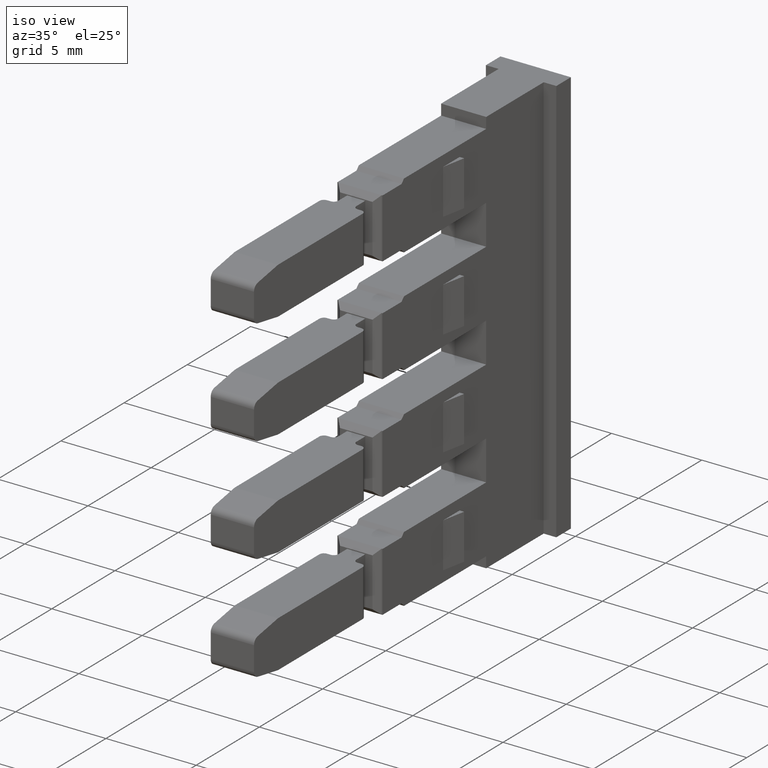
[diagram: clean part render]
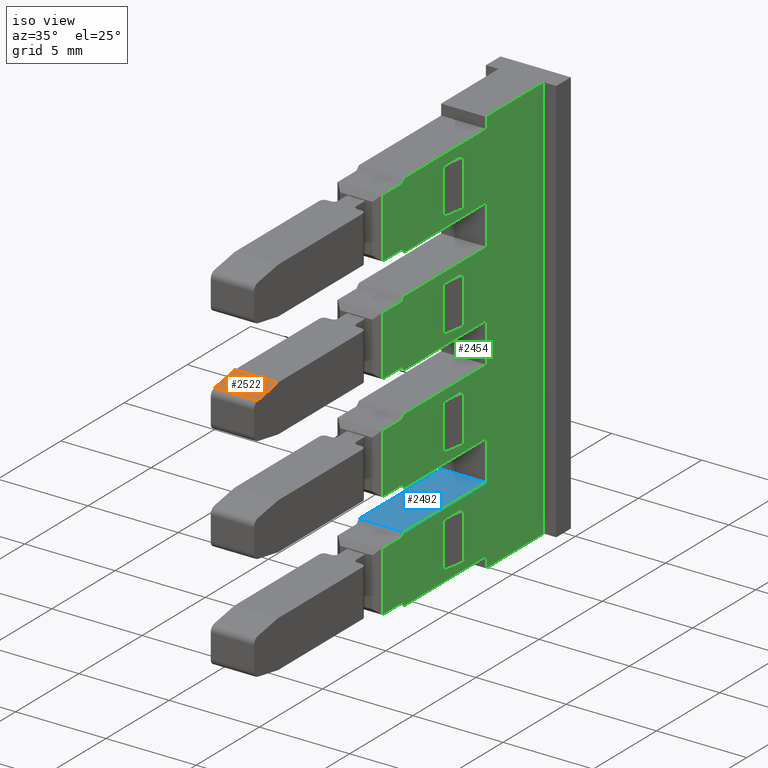
[diagram: same view with three faces highlighted in distinct colors, each labeled with its STEP entity id]
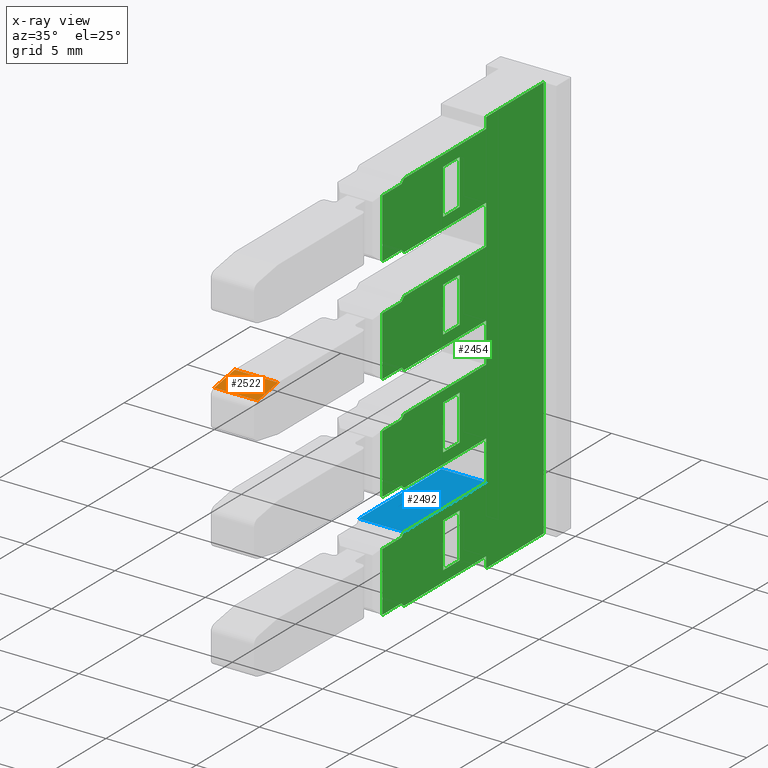
[diagram: x-ray of the same camera — body ghosted, the three highlighted faces saturated]
A machine part, iso view with three faces highlighted in distinct colors.
The next image is the same camera in x-ray (body ghosted, the three faces saturated) — at least one of them is partly hidden behind the body in this view.
Their STEP definitions:

[orange] entity #2522 — the highlighted planar face has unit normal (0, 0.1736, -0.9848).
#245 = EDGE_LOOP ( 'NONE', ( #5169, #5184, #5117, #5109 ) ) ;
#1151 = VECTOR ( 'NONE', #3966, 999.9999999999998900 ) ;
#1153 = VECTOR ( 'NONE', #3933, 1000.000000000000000 ) ;
#1208 = VECTOR ( 'NONE', #3957, 999.9999999999998900 ) ;
#1600 = AXIS2_PLACEMENT_3D ( 'NONE', #3100, #3117, #3111 ) ;
#1884 = VECTOR ( 'NONE', #3829, 1000.000000000000000 ) ;
#2117 = EDGE_CURVE ( 'NONE', #5468, #5411, #3826, .T. ) ;
#2152 = EDGE_CURVE ( 'NONE', #5345, #5416, #3938, .T. ) ;
#2167 = EDGE_CURVE ( 'NONE', #5411, #5345, #3944, .T. ) ;
#2168 = EDGE_CURVE ( 'NONE', #5416, #5468, #3964, .T. ) ;
#2522 = ADVANCED_FACE ( 'NONE', ( #3099 ), #3118, .F. ) ;
#3099 = FACE_OUTER_BOUND ( 'NONE', #245, .T. ) ;
#3100 = CARTESIAN_POINT ( 'NONE',  ( 1447.990005405424200, 987.5951899124289600, -84.10000000026970200 ) ) ;
#3111 = DIRECTION ( 'NONE',  ( 0.0000000000000000000, 0.9848077530122177900, 0.1736481776668759300 ) ) ;
#3117 = DIRECTION ( 'NONE',  ( 1.588044770917189400E-015, 0.1736481776668759300, -0.9848077530122177900 ) ) ;
#3118 = PLANE ( 'NONE',  #1600 ) ;
#3470 = CARTESIAN_POINT ( 'NONE',  ( 1456.818237421122100, 987.5951899124344200, -84.10000000014346700 ) ) ;
#3566 = CARTESIAN_POINT ( 'NONE',  ( 1459.217905001598200, 987.5951899123730300, -84.10000000015426700 ) ) ;
#3578 = CARTESIAN_POINT ( 'NONE',  ( 1456.818237421122100, 985.9839026753555800, -84.38411341383684300 ) ) ;
#3629 = CARTESIAN_POINT ( 'NONE',  ( 1459.217905001598200, 985.9839026753555800, -84.38411341383684300 ) ) ;
#3804 = CARTESIAN_POINT ( 'NONE',  ( 1447.990005405424200, 985.9839026753555800, -84.38411341383685700 ) ) ;
#3826 = LINE ( 'NONE', #3804, #1884 ) ;
#3829 = DIRECTION ( 'NONE',  ( -1.000000000000000000, 2.757610805231813000E-016, -1.563918802529759200E-015 ) ) ;
#3923 = CARTESIAN_POINT ( 'NONE',  ( 1458.020071211366000, 987.5951899124289600, -84.09999999998783000 ) ) ;
#3933 = DIRECTION ( 'NONE',  ( 1.000000000000000000, 0.0000000000000000000, 1.715124499442840100E-015 ) ) ;
#3938 = LINE ( 'NONE', #3923, #1153 ) ;
#3941 = CARTESIAN_POINT ( 'NONE',  ( 1459.217905001598200, 987.5951899124289600, -84.10000000026970200 ) ) ;
#3944 = LINE ( 'NONE', #3975, #1208 ) ;
#3957 = DIRECTION ( 'NONE',  ( 0.0000000000000000000, 0.9848077530122177900, 0.1736481776668759300 ) ) ;
#3964 = LINE ( 'NONE', #3941, #1151 ) ;
#3966 = DIRECTION ( 'NONE',  ( -0.0000000000000000000, -0.9848077530122177900, -0.1736481776668759300 ) ) ;
#3975 = CARTESIAN_POINT ( 'NONE',  ( 1456.818237421122100, 987.5951899124289600, -84.10000000026970200 ) ) ;
#5109 = ORIENTED_EDGE ( 'NONE', *, *, #2117, .F. ) ;
#5117 = ORIENTED_EDGE ( 'NONE', *, *, #2167, .F. ) ;
#5169 = ORIENTED_EDGE ( 'NONE', *, *, #2168, .F. ) ;
#5184 = ORIENTED_EDGE ( 'NONE', *, *, #2152, .F. ) ;
#5345 = VERTEX_POINT ( 'NONE', #3470 ) ;
#5411 = VERTEX_POINT ( 'NONE', #3578 ) ;
#5416 = VERTEX_POINT ( 'NONE', #3566 ) ;
#5468 = VERTEX_POINT ( 'NONE', #3629 ) ;

[blue] entity #2492 — the highlighted planar face has unit normal (0, -0, 1).
#354 = EDGE_LOOP ( 'NONE', ( #1141, #1135, #1106, #1131 ) ) ;
#933 = CARTESIAN_POINT ( 'NONE',  ( 1459.267071211366600, 1007.642679537504000, -95.34999999998878200 ) ) ;
#955 = LINE ( 'NONE', #933, #1841 ) ;
#961 = DIRECTION ( 'NONE',  ( 1.280238727656624100E-014, 1.000000000000000000, -0.0000000000000000000 ) ) ;
#1106 = ORIENTED_EDGE ( 'NONE', *, *, #2310, .T. ) ;
#1131 = ORIENTED_EDGE ( 'NONE', *, *, #2076, .T. ) ;
#1135 = ORIENTED_EDGE ( 'NONE', *, *, #2137, .T. ) ;
#1141 = ORIENTED_EDGE ( 'NONE', *, *, #2161, .T. ) ;
#1161 = VECTOR ( 'NONE', #3956, 1000.000000000000000 ) ;
#1211 = VECTOR ( 'NONE', #3858, 1000.000000000000000 ) ;
#1378 = VECTOR ( 'NONE', #4404, 1000.000000000000000 ) ;
#1536 = AXIS2_PLACEMENT_3D ( 'NONE', #2918, #2951, #2961 ) ;
#1841 = VECTOR ( 'NONE', #961, 1000.000000000000000 ) ;
#2076 = EDGE_CURVE ( 'NONE', #5376, #5337, #955, .T. ) ;
#2137 = EDGE_CURVE ( 'NONE', #5338, #5380, #3817, .T. ) ;
#2161 = EDGE_CURVE ( 'NONE', #5337, #5338, #3981, .T. ) ;
#2310 = EDGE_CURVE ( 'NONE', #5380, #5376, #4381, .T. ) ;
#2492 = ADVANCED_FACE ( 'NONE', ( #2932 ), #2934, .T. ) ;
#2918 = CARTESIAN_POINT ( 'NONE',  ( 1516.460390188475000, 997.4946795375043400, -95.34999999998913700 ) ) ;
#2932 = FACE_OUTER_BOUND ( 'NONE', #354, .T. ) ;
#2934 = PLANE ( 'NONE',  #1536 ) ;
#2951 = DIRECTION ( 'NONE',  ( 1.715124499442925100E-015, -2.195768806939460200E-029, 1.000000000000000000 ) ) ;
#2961 = DIRECTION ( 'NONE',  ( 1.000000000000000000, 0.0000000000000000000, -1.715124499442925100E-015 ) ) ;
#3491 = CARTESIAN_POINT ( 'NONE',  ( 1456.769071211365800, 1003.994679537506300, -95.34999999998902400 ) ) ;
#3497 = CARTESIAN_POINT ( 'NONE',  ( 1459.267071211366300, 1003.994679537506300, -95.34999999998896700 ) ) ;
#3530 = CARTESIAN_POINT ( 'NONE',  ( 1456.769071211365800, 997.4946795375042300, -95.34999999998872500 ) ) ;
#3537 = CARTESIAN_POINT ( 'NONE',  ( 1459.267071211366300, 997.4946795375042300, -95.34999999998866800 ) ) ;
#3817 = LINE ( 'NONE', #3851, #1211 ) ;
#3851 = CARTESIAN_POINT ( 'NONE',  ( 1456.769071211365800, 997.4946795375043400, -95.34999999998903800 ) ) ;
#3858 = DIRECTION ( 'NONE',  ( -3.766016875894430600E-044, -1.000000000000000000, -2.195768806939460200E-029 ) ) ;
#3956 = DIRECTION ( 'NONE',  ( -1.000000000000000000, 6.401193638283200000E-015, 3.370899700909298000E-028 ) ) ;
#3981 = LINE ( 'NONE', #3983, #1161 ) ;
#3983 = CARTESIAN_POINT ( 'NONE',  ( 1456.318071211366000, 1003.994679537506000, -95.34999999998902400 ) ) ;
#4377 = CARTESIAN_POINT ( 'NONE',  ( 1516.460390188475000, 997.4946795375045700, -95.34999999998913700 ) ) ;
#4381 = LINE ( 'NONE', #4377, #1378 ) ;
#4404 = DIRECTION ( 'NONE',  ( 1.000000000000000000, 0.0000000000000000000, -1.715124499442925100E-015 ) ) ;
#5337 = VERTEX_POINT ( 'NONE', #3497 ) ;
#5338 = VERTEX_POINT ( 'NONE', #3491 ) ;
#5376 = VERTEX_POINT ( 'NONE', #3537 ) ;
#5380 = VERTEX_POINT ( 'NONE', #3530 ) ;

[green] entity #2454 — the highlighted planar face has unit normal (-1, 0, 0).
#209 = EDGE_LOOP ( 'NONE', ( #4875, #4847, #4856, #4898 ) ) ;
#226 = EDGE_LOOP ( 'NONE', ( #5691, #5705, #5706, #5731, #5729, #5740, #5736, #4873, #4953, #4851, #4906, #4938, #4889, #4886, #4887, #4866, #4865, #4936, #4897, #4860, #4853, #4846, #4896, #4872, #4954, #4878, #4918, #4960, #4859, #4937, #4862, #4881, #4877, #4882, #4956, #4852 ) ) ;
#250 = EDGE_LOOP ( 'NONE', ( #4933, #4874, #4939, #4890 ) ) ;
#285 = EDGE_LOOP ( 'NONE', ( #4909, #4926, #4854, #4855 ) ) ;
#299 = EDGE_LOOP ( 'NONE', ( #4884, #4861, #4857, #4867 ) ) ;
#476 = LINE ( 'NONE', #512, #1669 ) ;
#486 = CARTESIAN_POINT ( 'NONE',  ( 1459.267071211366600, 1003.994679537510600, -77.04999999999319000 ) ) ;
#495 = LINE ( 'NONE', #498, #1667 ) ;
#498 = CARTESIAN_POINT ( 'NONE',  ( 1459.267071211366600, 1007.642679537518000, -77.04999999999317600 ) ) ;
#501 = LINE ( 'NONE', #486, #1706 ) ;
#506 = DIRECTION ( 'NONE',  ( 1.071457127791093600E-025, 9.317217804677289600E-014, -1.000000000000000000 ) ) ;
#512 = CARTESIAN_POINT ( 'NONE',  ( 1459.267071211366600, 1003.994679537520300, -100.1158559843420100 ) ) ;
#514 = DIRECTION ( 'NONE',  ( 8.167936110773030400E-029, -1.045690813403665900E-042, 1.000000000000000000 ) ) ;
#521 = LINE ( 'NONE', #546, #1678 ) ;
#530 = DIRECTION ( 'NONE',  ( -0.0000000000000000000, 0.7071067811865999800, 0.7071067811864950600 ) ) ;
#536 = DIRECTION ( 'NONE',  ( 1.280238727656624100E-014, 1.000000000000000000, -0.0000000000000000000 ) ) ;
#546 = CARTESIAN_POINT ( 'NONE',  ( 1459.267071211366600, 1007.642679537518000, -81.34999999999109800 ) ) ;
#550 = LINE ( 'NONE', #551, #1701 ) ;
#551 = CARTESIAN_POINT ( 'NONE',  ( 1459.267071211366300, 997.4946795375185500, -77.64999999999024300 ) ) ;
#555 = DIRECTION ( 'NONE',  ( -1.280238727656624100E-014, -1.000000000000000000, 0.0000000000000000000 ) ) ;
#564 = LINE ( 'NONE', #572, #1703 ) ;
#572 = CARTESIAN_POINT ( 'NONE',  ( 1459.267071211366600, 1007.642679537518000, -77.64999999999290000 ) ) ;
#580 = DIRECTION ( 'NONE',  ( 1.280238727656624100E-014, 1.000000000000000000, -0.0000000000000000000 ) ) ;
#612 = CARTESIAN_POINT ( 'NONE',  ( 1459.267071211366300, 995.7946795375190700, -81.14999999999172100 ) ) ;
#617 = DIRECTION ( 'NONE',  ( -0.0000000000000000000, 1.000000000000000000, -3.397305977084603400E-014 ) ) ;
#624 = CARTESIAN_POINT ( 'NONE',  ( 1459.267071211366300, 1001.106402704010000, -77.84999999999018900 ) ) ;
#627 = LINE ( 'NONE', #624, #1751 ) ;
#630 = LINE ( 'NONE', #612, #1740 ) ;
#631 = LINE ( 'NONE', #644, #1700 ) ;
#641 = DIRECTION ( 'NONE',  ( -0.0000000000000000000, 1.000000000000000000, -6.042920786565250600E-015 ) ) ;
#644 = CARTESIAN_POINT ( 'NONE',  ( 1459.267071211366600, 1007.642679537518000, -87.24999999998702500 ) ) ;
#647 = DIRECTION ( 'NONE',  ( -1.280238727656624100E-014, -1.000000000000000000, 0.0000000000000000000 ) ) ;
#653 = CARTESIAN_POINT ( 'NONE',  ( 1459.267071211366300, 1001.892679537514000, -80.75000000009424600 ) ) ;
#655 = LINE ( 'NONE', #685, #1761 ) ;
#657 = DIRECTION ( 'NONE',  ( -0.0000000000000000000, -1.000000000000000000, -0.0000000000000000000 ) ) ;
#660 = LINE ( 'NONE', #653, #1780 ) ;
#669 = CARTESIAN_POINT ( 'NONE',  ( 1459.267071211365600, 1000.592679537507700, -92.55000000009425800 ) ) ;
#671 = DIRECTION ( 'NONE',  ( 0.0000000000000000000, 0.0000000000000000000, 1.000000000000000000 ) ) ;
#685 = CARTESIAN_POINT ( 'NONE',  ( 1459.267071211365600, 1000.592679537514600, -86.65000000009425200 ) ) ;
#686 = LINE ( 'NONE', #688, #1757 ) ;
#687 = DIRECTION ( 'NONE',  ( 0.0000000000000000000, 0.0000000000000000000, 1.000000000000000000 ) ) ;
#688 = CARTESIAN_POINT ( 'NONE',  ( 1459.267071211365600, 1001.892679537500700, -98.45000000009424900 ) ) ;
#694 = LINE ( 'NONE', #669, #1758 ) ;
#698 = DIRECTION ( 'NONE',  ( 0.0000000000000000000, 0.0000000000000000000, 1.000000000000000000 ) ) ;
#706 = DIRECTION ( 'NONE',  ( 1.280238727656624100E-014, 1.000000000000000000, -0.0000000000000000000 ) ) ;
#707 = CARTESIAN_POINT ( 'NONE',  ( 1459.267071211366300, 1000.592679537514000, -78.25000000009424600 ) ) ;
#711 = LINE ( 'NONE', #731, #1767 ) ;
#712 = DIRECTION ( 'NONE',  ( -0.0000000000000000000, 0.7071067811865240400, -0.7071067811865710000 ) ) ;
#717 = LINE ( 'NONE', #761, #1726 ) ;
#718 = CARTESIAN_POINT ( 'NONE',  ( 1459.267071211366600, 1007.642679537518000, -83.54999999998877100 ) ) ;
#719 = LINE ( 'NONE', #784, #1771 ) ;
#722 = LINE ( 'NONE', #707, #1777 ) ;
#731 = CARTESIAN_POINT ( 'NONE',  ( 1459.267071211366300, 997.1446795375180700, -80.99999999999180000 ) ) ;
#732 = LINE ( 'NONE', #718, #1746 ) ;
#735 = DIRECTION ( 'NONE',  ( -0.0000000000000000000, -1.000000000000000000, -0.0000000000000000000 ) ) ;
#736 = CARTESIAN_POINT ( 'NONE',  ( 1459.267071211366300, 995.7926795375192300, -100.1158559843420100 ) ) ;
#738 = DIRECTION ( 'NONE',  ( 8.167936110773030400E-029, -1.045690813403665900E-042, 1.000000000000000000 ) ) ;
#739 = LINE ( 'NONE', #736, #1731 ) ;
#749 = DIRECTION ( 'NONE',  ( -8.167936110773030400E-029, 1.045690813403665900E-042, -1.000000000000000000 ) ) ;
#752 = CARTESIAN_POINT ( 'NONE',  ( 1459.267071211366300, 995.7946795375190700, -83.74999999998840400 ) ) ;
#755 = LINE ( 'NONE', #752, #1770 ) ;
#758 = LINE ( 'NONE', #787, #1728 ) ;
#761 = CARTESIAN_POINT ( 'NONE',  ( 1459.267071211366600, 1008.542679537515100, -100.1158559843420100 ) ) ;
#766 = DIRECTION ( 'NONE',  ( 8.167936110773030400E-029, -1.045690813403665900E-042, 1.000000000000000000 ) ) ;
#776 = DIRECTION ( 'NONE',  ( -0.0000000000000000000, -1.000000000000000000, -3.433133262256396200E-014 ) ) ;
#784 = CARTESIAN_POINT ( 'NONE',  ( 1459.267071211366600, 1003.994679537520300, -100.1158559843420100 ) ) ;
#787 = CARTESIAN_POINT ( 'NONE',  ( 1459.267071211366600, 1007.642679537504000, -99.64999999998741500 ) ) ;
#788 = DIRECTION ( 'NONE',  ( 8.167936110773030400E-029, -1.045690813403665900E-042, 1.000000000000000000 ) ) ;
#790 = LINE ( 'NONE', #797, #1816 ) ;
#792 = LINE ( 'NONE', #819, #1725 ) ;
#795 = LINE ( 'NONE', #829, #1847 ) ;
#796 = DIRECTION ( 'NONE',  ( -0.0000000000000000000, -0.7071067811865240400, -0.7071067811865710000 ) ) ;
#797 = CARTESIAN_POINT ( 'NONE',  ( 1459.267071211366300, 1000.592679537514000, -80.75000000009424600 ) ) ;
#800 = DIRECTION ( 'NONE',  ( -1.280238727656624100E-014, -1.000000000000000000, 0.0000000000000000000 ) ) ;
#802 = DIRECTION ( 'NONE',  ( -0.0000000000000000000, -0.7071067811865999800, 0.7071067811864950600 ) ) ;
#803 = LINE ( 'NONE', #832, #1839 ) ;
#807 = DIRECTION ( 'NONE',  ( -1.280238727656624100E-014, -1.000000000000000000, 0.0000000000000000000 ) ) ;
#808 = LINE ( 'NONE', #811, #1827 ) ;
#810 = CARTESIAN_POINT ( 'NONE',  ( 1459.267071211366300, 997.1446795375180700, -83.89999999998839500 ) ) ;
#811 = CARTESIAN_POINT ( 'NONE',  ( 1459.267071211366300, 997.1446795375110200, -89.79999999998840100 ) ) ;
#812 = CARTESIAN_POINT ( 'NONE',  ( 1459.267071211366600, 997.4946795375184400, -87.24999999998986800 ) ) ;
#813 = DIRECTION ( 'NONE',  ( -0.0000000000000000000, -0.7071067811865240400, -0.7071067811865710000 ) ) ;
#815 = DIRECTION ( 'NONE',  ( -0.0000000000000000000, -0.7071067811865999800, 0.7071067811864950600 ) ) ;
#819 = CARTESIAN_POINT ( 'NONE',  ( 1459.267071211366600, 1007.642679537504000, -99.04999999998702300 ) ) ;
#821 = LINE ( 'NONE', #855, #1806 ) ;
#822 = LINE ( 'NONE', #825, #1799 ) ;
#823 = DIRECTION ( 'NONE',  ( -0.0000000000000000000, -0.7071067811865240400, -0.7071067811865710000 ) ) ;
#825 = CARTESIAN_POINT ( 'NONE',  ( 1459.267071211366600, 997.4946795375045700, -99.04999999998986500 ) ) ;
#826 = LINE ( 'NONE', #810, #1805 ) ;
#828 = DIRECTION ( 'NONE',  ( 0.0000000000000000000, 0.0000000000000000000, 1.000000000000000000 ) ) ;
#829 = CARTESIAN_POINT ( 'NONE',  ( 1459.267071211366300, 997.1446795375042000, -95.69999999998840700 ) ) ;
#831 = LINE ( 'NONE', #812, #1811 ) ;
#832 = CARTESIAN_POINT ( 'NONE',  ( 1459.267071211366300, 995.7926795375192300, -100.1158559843420100 ) ) ;
#833 = DIRECTION ( 'NONE',  ( -0.0000000000000000000, -1.000000000000000000, -6.401193638283150300E-015 ) ) ;
#835 = DIRECTION ( 'NONE',  ( -0.0000000000000000000, -1.000000000000000000, -0.0000000000000000000 ) ) ;
#837 = LINE ( 'NONE', #866, #1804 ) ;
#840 = LINE ( 'NONE', #864, #1819 ) ;
#844 = LINE ( 'NONE', #846, #1797 ) ;
#845 = DIRECTION ( 'NONE',  ( -0.0000000000000000000, -1.000000000000000000, -6.401193638283150300E-015 ) ) ;
#846 = CARTESIAN_POINT ( 'NONE',  ( 1459.267071211365600, 1000.592679537507700, -90.05000000009424400 ) ) ;
#850 = CARTESIAN_POINT ( 'NONE',  ( 1459.267071211366600, 1007.642679537511100, -93.14999999998701700 ) ) ;
#853 = DIRECTION ( 'NONE',  ( -1.280238727656624100E-014, -1.000000000000000000, 0.0000000000000000000 ) ) ;
#855 = CARTESIAN_POINT ( 'NONE',  ( 1459.267071211366300, 1001.106402704003100, -92.94999999998999800 ) ) ;
#857 = LINE ( 'NONE', #858, #1808 ) ;
#858 = CARTESIAN_POINT ( 'NONE',  ( 1459.267071211365600, 1000.592679537500700, -95.95000000009424900 ) ) ;
#859 = DIRECTION ( 'NONE',  ( -0.0000000000000000000, -1.000000000000000000, -3.433133262256396200E-014 ) ) ;
#863 = LINE ( 'NONE', #865, #1823 ) ;
#864 = CARTESIAN_POINT ( 'NONE',  ( 1459.267071211366300, 995.7946795375052000, -95.54999999998840100 ) ) ;
#865 = CARTESIAN_POINT ( 'NONE',  ( 1459.267071211366600, 1003.994679537496500, -99.64999999998701700 ) ) ;
#866 = CARTESIAN_POINT ( 'NONE',  ( 1459.267071211366300, 1001.106402703996000, -98.84999999999000400 ) ) ;
#868 = DIRECTION ( 'NONE',  ( -1.067337078129073100E-025, -9.281390519505110500E-014, -1.000000000000000000 ) ) ;
#869 = DIRECTION ( 'NONE',  ( -0.0000000000000000000, -1.000000000000000000, -0.0000000000000000000 ) ) ;
#871 = DIRECTION ( 'NONE',  ( -0.0000000000000000000, -1.000000000000000000, -0.0000000000000000000 ) ) ;
#877 = LINE ( 'NONE', #850, #1828 ) ;
#880 = LINE ( 'NONE', #881, #1837 ) ;
#881 = CARTESIAN_POINT ( 'NONE',  ( 1459.267071211365600, 1000.592679537500700, -98.45000000009424900 ) ) ;
#883 = DIRECTION ( 'NONE',  ( -0.0000000000000000000, -1.000000000000000000, -3.433133262256396200E-014 ) ) ;
#884 = DIRECTION ( 'NONE',  ( 8.167936110773030400E-029, -1.045690813403665900E-042, 1.000000000000000000 ) ) ;
#894 = LINE ( 'NONE', #895, #1810 ) ;
#895 = CARTESIAN_POINT ( 'NONE',  ( 1459.267071211366300, 995.7926795375123000, -106.0158559843420000 ) ) ;
#902 = CARTESIAN_POINT ( 'NONE',  ( 1459.267071211365600, 1001.892679537514700, -86.65000000009425200 ) ) ;
#904 = CARTESIAN_POINT ( 'NONE',  ( 1459.267071211366300, 995.7946795375121400, -89.64999999998841000 ) ) ;
#907 = LINE ( 'NONE', #904, #1822 ) ;
#908 = CARTESIAN_POINT ( 'NONE',  ( 1459.267071211366600, 1007.642679537511100, -89.44999999998877600 ) ) ;
#915 = LINE ( 'NONE', #928, #1829 ) ;
#916 = LINE ( 'NONE', #902, #1807 ) ;
#917 = DIRECTION ( 'NONE',  ( 1.280238727656624100E-014, 1.000000000000000000, -0.0000000000000000000 ) ) ;
#918 = LINE ( 'NONE', #908, #1834 ) ;
#924 = DIRECTION ( 'NONE',  ( 0.0000000000000000000, 0.0000000000000000000, 1.000000000000000000 ) ) ;
#925 = DIRECTION ( 'NONE',  ( 0.0000000000000000000, 0.0000000000000000000, 1.000000000000000000 ) ) ;
#928 = CARTESIAN_POINT ( 'NONE',  ( 1459.267071211365600, 1000.592679537514600, -86.65000000009425200 ) ) ;
#932 = DIRECTION ( 'NONE',  ( -1.067337078129073100E-025, -9.281390519505110500E-014, -1.000000000000000000 ) ) ;
#933 = CARTESIAN_POINT ( 'NONE',  ( 1459.267071211366600, 1007.642679537504000, -95.34999999998878200 ) ) ;
#934 = LINE ( 'NONE', #938, #1843 ) ;
#935 = CARTESIAN_POINT ( 'NONE',  ( 1459.267071211366600, 997.4946795375115000, -93.14999999998985900 ) ) ;
#938 = CARTESIAN_POINT ( 'NONE',  ( 1459.267071211365600, 1000.592679537514600, -84.15000000009425200 ) ) ;
#939 = DIRECTION ( 'NONE',  ( -0.0000000000000000000, -1.000000000000000000, -0.0000000000000000000 ) ) ;
#942 = CARTESIAN_POINT ( 'NONE',  ( 1459.267071211366600, 1003.994679537503700, -93.74999999998701100 ) ) ;
#946 = DIRECTION ( 'NONE',  ( -0.0000000000000000000, -1.000000000000000000, -6.401193638283150300E-015 ) ) ;
#947 = LINE ( 'NONE', #942, #1845 ) ;
#948 = DIRECTION ( 'NONE',  ( -0.0000000000000000000, -0.7071067811865999800, 0.7071067811864950600 ) ) ;
#949 = LINE ( 'NONE', #935, #1792 ) ;
#951 = LINE ( 'NONE', #952, #1844 ) ;
#952 = CARTESIAN_POINT ( 'NONE',  ( 1459.267071211366300, 1001.106402704010000, -87.04999999998999300 ) ) ;
#955 = LINE ( 'NONE', #933, #1841 ) ;
#961 = DIRECTION ( 'NONE',  ( 1.280238727656624100E-014, 1.000000000000000000, -0.0000000000000000000 ) ) ;
#1481 = AXIS2_PLACEMENT_3D ( 'NONE', #2735, #2798, #2797 ) ;
#1667 = VECTOR ( 'NONE', #536, 1000.000000000000000 ) ;
#1669 = VECTOR ( 'NONE', #514, 1000.000000000000000 ) ;
#1678 = VECTOR ( 'NONE', #555, 1000.000000000000000 ) ;
#1700 = VECTOR ( 'NONE', #647, 1000.000000000000000 ) ;
#1701 = VECTOR ( 'NONE', #530, 1000.000000000000000 ) ;
#1703 = VECTOR ( 'NONE', #580, 1000.000000000000000 ) ;
#1706 = VECTOR ( 'NONE', #506, 1000.000000000000000 ) ;
#1725 = VECTOR ( 'NONE', #807, 1000.000000000000000 ) ;
#1726 = VECTOR ( 'NONE', #749, 1000.000000000000000 ) ;
#1728 = VECTOR ( 'NONE', #800, 1000.000000000000000 ) ;
#1731 = VECTOR ( 'NONE', #738, 1000.000000000000000 ) ;
#1740 = VECTOR ( 'NONE', #617, 1000.000000000000000 ) ;
#1746 = VECTOR ( 'NONE', #706, 1000.000000000000000 ) ;
#1751 = VECTOR ( 'NONE', #641, 1000.000000000000000 ) ;
#1757 = VECTOR ( 'NONE', #687, 1000.000000000000000 ) ;
#1758 = VECTOR ( 'NONE', #671, 1000.000000000000000 ) ;
#1761 = VECTOR ( 'NONE', #657, 1000.000000000000000 ) ;
#1767 = VECTOR ( 'NONE', #712, 1000.000000000000000 ) ;
#1770 = VECTOR ( 'NONE', #776, 1000.000000000000000 ) ;
#1771 = VECTOR ( 'NONE', #766, 1000.000000000000000 ) ;
#1777 = VECTOR ( 'NONE', #735, 1000.000000000000000 ) ;
#1780 = VECTOR ( 'NONE', #698, 1000.000000000000000 ) ;
#1791 = VECTOR ( 'NONE', #4714, 1000.000000000000000 ) ;
#1792 = VECTOR ( 'NONE', #948, 1000.000000000000000 ) ;
#1793 = VECTOR ( 'NONE', #4703, 1000.000000000000000 ) ;
#1797 = VECTOR ( 'NONE', #871, 1000.000000000000000 ) ;
#1799 = VECTOR ( 'NONE', #815, 1000.000000000000000 ) ;
#1802 = VECTOR ( 'NONE', #4741, 1000.000000000000000 ) ;
#1804 = VECTOR ( 'NONE', #833, 1000.000000000000000 ) ;
#1805 = VECTOR ( 'NONE', #796, 1000.000000000000000 ) ;
#1806 = VECTOR ( 'NONE', #845, 1000.000000000000000 ) ;
#1807 = VECTOR ( 'NONE', #925, 1000.000000000000000 ) ;
#1808 = VECTOR ( 'NONE', #869, 1000.000000000000000 ) ;
#1810 = VECTOR ( 'NONE', #884, 1000.000000000000000 ) ;
#1811 = VECTOR ( 'NONE', #802, 1000.000000000000000 ) ;
#1813 = VECTOR ( 'NONE', #4724, 1000.000000000000000 ) ;
#1815 = VECTOR ( 'NONE', #4731, 1000.000000000000000 ) ;
#1816 = VECTOR ( 'NONE', #828, 1000.000000000000000 ) ;
#1819 = VECTOR ( 'NONE', #859, 1000.000000000000000 ) ;
#1822 = VECTOR ( 'NONE', #883, 1000.000000000000000 ) ;
#1823 = VECTOR ( 'NONE', #868, 1000.000000000000000 ) ;
#1827 = VECTOR ( 'NONE', #813, 1000.000000000000000 ) ;
#1828 = VECTOR ( 'NONE', #853, 1000.000000000000000 ) ;
#1829 = VECTOR ( 'NONE', #924, 1000.000000000000000 ) ;
#1834 = VECTOR ( 'NONE', #917, 1000.000000000000000 ) ;
#1837 = VECTOR ( 'NONE', #835, 1000.000000000000000 ) ;
#1839 = VECTOR ( 'NONE', #788, 1000.000000000000000 ) ;
#1841 = VECTOR ( 'NONE', #961, 1000.000000000000000 ) ;
#1843 = VECTOR ( 'NONE', #939, 1000.000000000000000 ) ;
#1844 = VECTOR ( 'NONE', #946, 1000.000000000000000 ) ;
#1845 = VECTOR ( 'NONE', #932, 1000.000000000000000 ) ;
#1847 = VECTOR ( 'NONE', #823, 1000.000000000000000 ) ;
#1929 = EDGE_CURVE ( 'NONE', #5268, #5272, #501, .T. ) ;
#1930 = EDGE_CURVE ( 'NONE', #5261, #5253, #476, .T. ) ;
#1934 = EDGE_CURVE ( 'NONE', #5268, #5352, #495, .T. ) ;
#1941 = EDGE_CURVE ( 'NONE', #5289, #5231, #550, .T. ) ;
#1944 = EDGE_CURVE ( 'NONE', #5245, #5294, #521, .T. ) ;
#1950 = EDGE_CURVE ( 'NONE', #5231, #5272, #564, .T. ) ;
#1967 = EDGE_CURVE ( 'NONE', #5253, #5301, #631, .T. ) ;
#1977 = EDGE_CURVE ( 'NONE', #5311, #5296, #630, .T. ) ;
#1978 = EDGE_CURVE ( 'NONE', #5246, #5289, #627, .T. ) ;
#1985 = EDGE_CURVE ( 'NONE', #5374, #5349, #686, .T. ) ;
#1986 = EDGE_CURVE ( 'NONE', #5328, #5297, #694, .T. ) ;
#1987 = EDGE_CURVE ( 'NONE', #5346, #5365, #655, .T. ) ;
#1989 = EDGE_CURVE ( 'NONE', #5263, #5237, #660, .T. ) ;
#1998 = EDGE_CURVE ( 'NONE', #5317, #5306, #732, .T. ) ;
#2001 = EDGE_CURVE ( 'NONE', #5237, #5384, #722, .T. ) ;
#2003 = EDGE_CURVE ( 'NONE', #5311, #5246, #739, .T. ) ;
#2007 = EDGE_CURVE ( 'NONE', #5296, #5294, #711, .T. ) ;
#2009 = EDGE_CURVE ( 'NONE', #5352, #5273, #717, .T. ) ;
#2014 = EDGE_CURVE ( 'NONE', #5306, #5245, #719, .T. ) ;
#2021 = EDGE_CURVE ( 'NONE', #5332, #5291, #755, .T. ) ;
#2026 = EDGE_CURVE ( 'NONE', #5307, #5284, #792, .T. ) ;
#2028 = EDGE_CURVE ( 'NONE', #5273, #5339, #758, .T. ) ;
#2029 = EDGE_CURVE ( 'NONE', #5284, #5395, #822, .T. ) ;
#2030 = EDGE_CURVE ( 'NONE', #5317, #5332, #826, .T. ) ;
#2032 = EDGE_CURVE ( 'NONE', #5376, #5302, #795, .T. ) ;
#2033 = EDGE_CURVE ( 'NONE', #5347, #5384, #790, .T. ) ;
#2034 = EDGE_CURVE ( 'NONE', #5308, #5291, #803, .T. ) ;
#2035 = EDGE_CURVE ( 'NONE', #5301, #5282, #831, .T. ) ;
#2038 = EDGE_CURVE ( 'NONE', #5336, #5292, #808, .T. ) ;
#2042 = EDGE_CURVE ( 'NONE', #5313, #5378, #821, .T. ) ;
#2044 = EDGE_CURVE ( 'NONE', #5348, #5297, #844, .T. ) ;
#2046 = EDGE_CURVE ( 'NONE', #5302, #5323, #840, .T. ) ;
#2048 = EDGE_CURVE ( 'NONE', #5374, #5305, #880, .T. ) ;
#2050 = EDGE_CURVE ( 'NONE', #5307, #5339, #863, .T. ) ;
#2051 = EDGE_CURVE ( 'NONE', #5395, #5364, #837, .T. ) ;
#2053 = EDGE_CURVE ( 'NONE', #5391, #5386, #877, .T. ) ;
#2055 = EDGE_CURVE ( 'NONE', #5349, #5312, #857, .T. ) ;
#2057 = EDGE_CURVE ( 'NONE', #5292, #5300, #907, .T. ) ;
#2061 = EDGE_CURVE ( 'NONE', #5365, #5357, #915, .T. ) ;
#2065 = EDGE_CURVE ( 'NONE', #5346, #5330, #916, .T. ) ;
#2067 = EDGE_CURVE ( 'NONE', #5336, #5261, #918, .T. ) ;
#2069 = EDGE_CURVE ( 'NONE', #5378, #5300, #894, .T. ) ;
#2076 = EDGE_CURVE ( 'NONE', #5376, #5337, #955, .T. ) ;
#2078 = EDGE_CURVE ( 'NONE', #5282, #5308, #951, .T. ) ;
#2079 = EDGE_CURVE ( 'NONE', #5391, #5337, #947, .T. ) ;
#2080 = EDGE_CURVE ( 'NONE', #5330, #5357, #934, .T. ) ;
#2082 = EDGE_CURVE ( 'NONE', #5386, #5313, #949, .T. ) ;
#2084 = EDGE_CURVE ( 'NONE', #5283, #5348, #4727, .T. ) ;
#2085 = EDGE_CURVE ( 'NONE', #5305, #5312, #4708, .T. ) ;
#2086 = EDGE_CURVE ( 'NONE', #5364, #5323, #4711, .T. ) ;
#2087 = EDGE_CURVE ( 'NONE', #5283, #5328, #4740, .T. ) ;
#2088 = EDGE_CURVE ( 'NONE', #5263, #5347, #4721, .T. ) ;
#2454 = ADVANCED_FACE ( 'NONE', ( #2728, #2730, #2736, #2761, #2723 ), #2733, .F. ) ;
#2723 = FACE_BOUND ( 'NONE', #285, .T. ) ;
#2728 = FACE_OUTER_BOUND ( 'NONE', #226, .T. ) ;
#2730 = FACE_BOUND ( 'NONE', #299, .T. ) ;
#2733 = PLANE ( 'NONE',  #1481 ) ;
#2735 = CARTESIAN_POINT ( 'NONE',  ( 1459.267071211366600, 1007.642679537518000, -100.1158559843420100 ) ) ;
#2736 = FACE_BOUND ( 'NONE', #209, .T. ) ;
#2761 = FACE_BOUND ( 'NONE', #250, .T. ) ;
#2797 = DIRECTION ( 'NONE',  ( -1.280238727656624100E-014, -1.000000000000000000, 0.0000000000000000000 ) ) ;
#2798 = DIRECTION ( 'NONE',  ( -1.000000000000000000, 1.280238727656624100E-014, 8.167936110773030400E-029 ) ) ;
#3393 = CARTESIAN_POINT ( 'NONE',  ( 1459.267071211366300, 997.4946795375173000, -77.64999999999273000 ) ) ;
#3397 = CARTESIAN_POINT ( 'NONE',  ( 1459.267071211366600, 1003.994679537511200, -77.04999999999304800 ) ) ;
#3399 = CARTESIAN_POINT ( 'NONE',  ( 1459.267071211366300, 997.2946795375110000, -89.64999999998836700 ) ) ;
#3410 = CARTESIAN_POINT ( 'NONE',  ( 1459.267071211366600, 1003.994679537511200, -87.24999999998686900 ) ) ;
#3411 = CARTESIAN_POINT ( 'NONE',  ( 1459.267071211366600, 1008.542679537501800, -99.64999999998737200 ) ) ;
#3419 = CARTESIAN_POINT ( 'NONE',  ( 1459.267071211366600, 1003.994679537520100, -81.34999999999109800 ) ) ;
#3424 = CARTESIAN_POINT ( 'NONE',  ( 1459.267071211366300, 997.2946795375181600, -87.04999999998993600 ) ) ;
#3425 = CARTESIAN_POINT ( 'NONE',  ( 1459.267071211366300, 997.4946795375033200, -99.04999999998744900 ) ) ;
#3429 = CARTESIAN_POINT ( 'NONE',  ( 1459.267071211366300, 997.4946795375179800, -81.34999999999136800 ) ) ;
#3430 = CARTESIAN_POINT ( 'NONE',  ( 1459.267071211366300, 997.2946795375179400, -81.14999999999176300 ) ) ;
#3431 = CARTESIAN_POINT ( 'NONE',  ( 1459.267071211365600, 1000.592679537507700, -90.05000000009424400 ) ) ;
#3434 = CARTESIAN_POINT ( 'NONE',  ( 1459.267071211366600, 1001.892679537507800, -92.55000000009425800 ) ) ;
#3436 = CARTESIAN_POINT ( 'NONE',  ( 1459.267071211366300, 995.7926795375192300, -83.74999999998839000 ) ) ;
#3442 = CARTESIAN_POINT ( 'NONE',  ( 1459.267071211366300, 1003.994679537510600, -77.64999999999319900 ) ) ;
#3443 = CARTESIAN_POINT ( 'NONE',  ( 1459.267071211366600, 1001.892679537514000, -78.25000000009424600 ) ) ;
#3444 = CARTESIAN_POINT ( 'NONE',  ( 1459.267071211366300, 1003.994679537513400, -89.44999999998897500 ) ) ;
#3445 = CARTESIAN_POINT ( 'NONE',  ( 1459.267071211366600, 1001.892679537514000, -80.75000000009424600 ) ) ;
#3446 = CARTESIAN_POINT ( 'NONE',  ( 1459.267071211366300, 997.2946795375181600, -77.84999999999021700 ) ) ;
#3449 = CARTESIAN_POINT ( 'NONE',  ( 1459.267071211366300, 995.7926795375192300, -77.84999999999011800 ) ) ;
#3457 = CARTESIAN_POINT ( 'NONE',  ( 1459.267071211366300, 995.7926795375123000, -89.64999999998839500 ) ) ;
#3458 = CARTESIAN_POINT ( 'NONE',  ( 1459.267071211366300, 997.4946795375173000, -87.24999999998745200 ) ) ;
#3459 = CARTESIAN_POINT ( 'NONE',  ( 1459.267071211366300, 997.2946795375041800, -95.54999999998837300 ) ) ;
#3461 = CARTESIAN_POINT ( 'NONE',  ( 1459.267071211366300, 995.7926795375053600, -98.84999999999000400 ) ) ;
#3462 = CARTESIAN_POINT ( 'NONE',  ( 1459.267071211366600, 1000.592679537518800, -86.65000000009425200 ) ) ;
#3463 = CARTESIAN_POINT ( 'NONE',  ( 1459.267071211366600, 1000.592679537504900, -98.45000000009424900 ) ) ;
#3467 = CARTESIAN_POINT ( 'NONE',  ( 1459.267071211366300, 997.2946795375180500, -83.74999999998836100 ) ) ;
#3476 = CARTESIAN_POINT ( 'NONE',  ( 1459.267071211366600, 1003.994679537520300, -83.54999999998904100 ) ) ;
#3481 = CARTESIAN_POINT ( 'NONE',  ( 1459.267071211366300, 997.2946795375111200, -92.94999999998994200 ) ) ;
#3482 = CARTESIAN_POINT ( 'NONE',  ( 1459.267071211366600, 1008.542679537515800, -77.04999999999287800 ) ) ;
#3484 = CARTESIAN_POINT ( 'NONE',  ( 1459.267071211366300, 995.7926795375053600, -95.54999999998840100 ) ) ;
#3487 = CARTESIAN_POINT ( 'NONE',  ( 1459.267071211366600, 1000.592679537514600, -80.75000000009424600 ) ) ;
#3489 = CARTESIAN_POINT ( 'NONE',  ( 1459.267071211366300, 995.7926795375192300, -87.04999999998999300 ) ) ;
#3490 = CARTESIAN_POINT ( 'NONE',  ( 1459.267071211366300, 995.7926795375191200, -81.14999999999173500 ) ) ;
#3492 = CARTESIAN_POINT ( 'NONE',  ( 1459.267071211366600, 1001.892679537514700, -84.15000000009425200 ) ) ;
#3493 = CARTESIAN_POINT ( 'NONE',  ( 1459.267071211366600, 1001.892679537507800, -90.05000000009424400 ) ) ;
#3496 = CARTESIAN_POINT ( 'NONE',  ( 1459.267071211366600, 1000.592679537511900, -92.55000000009425800 ) ) ;
#3497 = CARTESIAN_POINT ( 'NONE',  ( 1459.267071211366300, 1003.994679537506300, -95.34999999998896700 ) ) ;
#3502 = CARTESIAN_POINT ( 'NONE',  ( 1459.267071211366600, 1001.892679537500700, -95.95000000009424900 ) ) ;
#3505 = CARTESIAN_POINT ( 'NONE',  ( 1459.267071211366600, 1003.994679537497200, -99.04999999998686600 ) ) ;
#3507 = CARTESIAN_POINT ( 'NONE',  ( 1459.267071211366600, 1001.892679537514700, -86.65000000009425200 ) ) ;
#3509 = CARTESIAN_POINT ( 'NONE',  ( 1459.267071211365600, 1000.592679537514600, -84.15000000009425200 ) ) ;
#3511 = CARTESIAN_POINT ( 'NONE',  ( 1459.267071211366300, 997.4946795375181000, -83.54999999998865700 ) ) ;
#3516 = CARTESIAN_POINT ( 'NONE',  ( 1459.267071211366600, 1003.994679537496500, -99.64999999998713100 ) ) ;
#3520 = CARTESIAN_POINT ( 'NONE',  ( 1459.267071211365600, 1000.592679537500700, -95.95000000009424900 ) ) ;
#3523 = CARTESIAN_POINT ( 'NONE',  ( 1459.267071211366300, 997.4946795375111600, -89.44999999998866300 ) ) ;
#3531 = CARTESIAN_POINT ( 'NONE',  ( 1459.267071211366300, 997.4946795375102500, -93.14999999998745700 ) ) ;
#3537 = CARTESIAN_POINT ( 'NONE',  ( 1459.267071211366300, 997.4946795375042300, -95.34999999998866800 ) ) ;
#3554 = CARTESIAN_POINT ( 'NONE',  ( 1459.267071211366300, 1000.592679537514000, -78.25000000009424600 ) ) ;
#3559 = CARTESIAN_POINT ( 'NONE',  ( 1459.267071211366600, 1003.994679537504300, -93.14999999998687500 ) ) ;
#3570 = CARTESIAN_POINT ( 'NONE',  ( 1459.267071211366300, 997.2946795375042900, -98.84999999998994700 ) ) ;
#3581 = CARTESIAN_POINT ( 'NONE',  ( 1459.267071211366300, 995.7926795375123000, -92.94999999998999800 ) ) ;
#3583 = CARTESIAN_POINT ( 'NONE',  ( 1459.267071211366600, 1001.892679537500700, -98.45000000009424900 ) ) ;
#4701 = CARTESIAN_POINT ( 'NONE',  ( 1459.267071211365600, 1001.892679537507800, -92.55000000009425800 ) ) ;
#4703 = DIRECTION ( 'NONE',  ( 8.167936110773030400E-029, -1.045690813403665900E-042, 1.000000000000000000 ) ) ;
#4704 = CARTESIAN_POINT ( 'NONE',  ( 1459.267071211365600, 1000.592679537507700, -92.55000000009425800 ) ) ;
#4708 = LINE ( 'NONE', #4713, #1802 ) ;
#4711 = LINE ( 'NONE', #4729, #1793 ) ;
#4713 = CARTESIAN_POINT ( 'NONE',  ( 1459.267071211365600, 1000.592679537500700, -98.45000000009424900 ) ) ;
#4714 = DIRECTION ( 'NONE',  ( 0.0000000000000000000, 0.0000000000000000000, 1.000000000000000000 ) ) ;
#4721 = LINE ( 'NONE', #4742, #1815 ) ;
#4724 = DIRECTION ( 'NONE',  ( -0.0000000000000000000, -1.000000000000000000, -0.0000000000000000000 ) ) ;
#4727 = LINE ( 'NONE', #4701, #1791 ) ;
#4729 = CARTESIAN_POINT ( 'NONE',  ( 1459.267071211366300, 995.7926795375053600, -111.9158559843420000 ) ) ;
#4731 = DIRECTION ( 'NONE',  ( -0.0000000000000000000, -1.000000000000000000, -0.0000000000000000000 ) ) ;
#4740 = LINE ( 'NONE', #4704, #1813 ) ;
#4741 = DIRECTION ( 'NONE',  ( 0.0000000000000000000, 0.0000000000000000000, 1.000000000000000000 ) ) ;
#4742 = CARTESIAN_POINT ( 'NONE',  ( 1459.267071211366300, 1000.592679537514000, -80.75000000009424600 ) ) ;
#4846 = ORIENTED_EDGE ( 'NONE', *, *, #2042, .F. ) ;
#4847 = ORIENTED_EDGE ( 'NONE', *, *, #1987, .T. ) ;
#4851 = ORIENTED_EDGE ( 'NONE', *, *, #1998, .F. ) ;
#4852 = ORIENTED_EDGE ( 'NONE', *, *, #1934, .F. ) ;
#4853 = ORIENTED_EDGE ( 'NONE', *, *, #2069, .F. ) ;
#4854 = ORIENTED_EDGE ( 'NONE', *, *, #2085, .T. ) ;
#4855 = ORIENTED_EDGE ( 'NONE', *, *, #2055, .F. ) ;
#4856 = ORIENTED_EDGE ( 'NONE', *, *, #2061, .T. ) ;
#4857 = ORIENTED_EDGE ( 'NONE', *, *, #1986, .T. ) ;
#4859 = ORIENTED_EDGE ( 'NONE', *, *, #2086, .F. ) ;
#4860 = ORIENTED_EDGE ( 'NONE', *, *, #2057, .T. ) ;
#4861 = ORIENTED_EDGE ( 'NONE', *, *, #2087, .T. ) ;
#4862 = ORIENTED_EDGE ( 'NONE', *, *, #2029, .F. ) ;
#4865 = ORIENTED_EDGE ( 'NONE', *, *, #1930, .F. ) ;
#4866 = ORIENTED_EDGE ( 'NONE', *, *, #1967, .F. ) ;
#4867 = ORIENTED_EDGE ( 'NONE', *, *, #2044, .F. ) ;
#4872 = ORIENTED_EDGE ( 'NONE', *, *, #2053, .F. ) ;
#4873 = ORIENTED_EDGE ( 'NONE', *, *, #1944, .F. ) ;
#4874 = ORIENTED_EDGE ( 'NONE', *, *, #2088, .T. ) ;
#4875 = ORIENTED_EDGE ( 'NONE', *, *, #2065, .F. ) ;
#4877 = ORIENTED_EDGE ( 'NONE', *, *, #2050, .T. ) ;
#4878 = ORIENTED_EDGE ( 'NONE', *, *, #2076, .F. ) ;
#4881 = ORIENTED_EDGE ( 'NONE', *, *, #2026, .F. ) ;
#4882 = ORIENTED_EDGE ( 'NONE', *, *, #2028, .F. ) ;
#4884 = ORIENTED_EDGE ( 'NONE', *, *, #2084, .F. ) ;
#4886 = ORIENTED_EDGE ( 'NONE', *, *, #2078, .F. ) ;
#4887 = ORIENTED_EDGE ( 'NONE', *, *, #2035, .F. ) ;
#4889 = ORIENTED_EDGE ( 'NONE', *, *, #2034, .F. ) ;
#4890 = ORIENTED_EDGE ( 'NONE', *, *, #2001, .F. ) ;
#4896 = ORIENTED_EDGE ( 'NONE', *, *, #2082, .F. ) ;
#4897 = ORIENTED_EDGE ( 'NONE', *, *, #2038, .T. ) ;
#4898 = ORIENTED_EDGE ( 'NONE', *, *, #2080, .F. ) ;
#4906 = ORIENTED_EDGE ( 'NONE', *, *, #2030, .T. ) ;
#4909 = ORIENTED_EDGE ( 'NONE', *, *, #1985, .F. ) ;
#4918 = ORIENTED_EDGE ( 'NONE', *, *, #2032, .T. ) ;
#4926 = ORIENTED_EDGE ( 'NONE', *, *, #2048, .T. ) ;
#4933 = ORIENTED_EDGE ( 'NONE', *, *, #1989, .F. ) ;
#4936 = ORIENTED_EDGE ( 'NONE', *, *, #2067, .F. ) ;
#4937 = ORIENTED_EDGE ( 'NONE', *, *, #2051, .F. ) ;
#4938 = ORIENTED_EDGE ( 'NONE', *, *, #2021, .T. ) ;
#4939 = ORIENTED_EDGE ( 'NONE', *, *, #2033, .T. ) ;
#4953 = ORIENTED_EDGE ( 'NONE', *, *, #2014, .F. ) ;
#4954 = ORIENTED_EDGE ( 'NONE', *, *, #2079, .T. ) ;
#4956 = ORIENTED_EDGE ( 'NONE', *, *, #2009, .F. ) ;
#4960 = ORIENTED_EDGE ( 'NONE', *, *, #2046, .T. ) ;
#5231 = VERTEX_POINT ( 'NONE', #3393 ) ;
#5237 = VERTEX_POINT ( 'NONE', #3443 ) ;
#5245 = VERTEX_POINT ( 'NONE', #3419 ) ;
#5246 = VERTEX_POINT ( 'NONE', #3449 ) ;
#5253 = VERTEX_POINT ( 'NONE', #3410 ) ;
#5261 = VERTEX_POINT ( 'NONE', #3444 ) ;
#5263 = VERTEX_POINT ( 'NONE', #3445 ) ;
#5268 = VERTEX_POINT ( 'NONE', #3397 ) ;
#5272 = VERTEX_POINT ( 'NONE', #3442 ) ;
#5273 = VERTEX_POINT ( 'NONE', #3411 ) ;
#5282 = VERTEX_POINT ( 'NONE', #3424 ) ;
#5283 = VERTEX_POINT ( 'NONE', #3434 ) ;
#5284 = VERTEX_POINT ( 'NONE', #3425 ) ;
#5289 = VERTEX_POINT ( 'NONE', #3446 ) ;
#5291 = VERTEX_POINT ( 'NONE', #3436 ) ;
#5292 = VERTEX_POINT ( 'NONE', #3399 ) ;
#5294 = VERTEX_POINT ( 'NONE', #3429 ) ;
#5296 = VERTEX_POINT ( 'NONE', #3430 ) ;
#5297 = VERTEX_POINT ( 'NONE', #3431 ) ;
#5300 = VERTEX_POINT ( 'NONE', #3457 ) ;
#5301 = VERTEX_POINT ( 'NONE', #3458 ) ;
#5302 = VERTEX_POINT ( 'NONE', #3459 ) ;
#5305 = VERTEX_POINT ( 'NONE', #3463 ) ;
#5306 = VERTEX_POINT ( 'NONE', #3476 ) ;
#5307 = VERTEX_POINT ( 'NONE', #3505 ) ;
#5308 = VERTEX_POINT ( 'NONE', #3489 ) ;
#5311 = VERTEX_POINT ( 'NONE', #3490 ) ;
#5312 = VERTEX_POINT ( 'NONE', #3520 ) ;
#5313 = VERTEX_POINT ( 'NONE', #3481 ) ;
#5317 = VERTEX_POINT ( 'NONE', #3511 ) ;
#5323 = VERTEX_POINT ( 'NONE', #3484 ) ;
#5328 = VERTEX_POINT ( 'NONE', #3496 ) ;
#5330 = VERTEX_POINT ( 'NONE', #3492 ) ;
#5332 = VERTEX_POINT ( 'NONE', #3467 ) ;
#5336 = VERTEX_POINT ( 'NONE', #3523 ) ;
#5337 = VERTEX_POINT ( 'NONE', #3497 ) ;
#5339 = VERTEX_POINT ( 'NONE', #3516 ) ;
#5346 = VERTEX_POINT ( 'NONE', #3507 ) ;
#5347 = VERTEX_POINT ( 'NONE', #3487 ) ;
#5348 = VERTEX_POINT ( 'NONE', #3493 ) ;
#5349 = VERTEX_POINT ( 'NONE', #3502 ) ;
#5352 = VERTEX_POINT ( 'NONE', #3482 ) ;
#5357 = VERTEX_POINT ( 'NONE', #3509 ) ;
#5364 = VERTEX_POINT ( 'NONE', #3461 ) ;
#5365 = VERTEX_POINT ( 'NONE', #3462 ) ;
#5374 = VERTEX_POINT ( 'NONE', #3583 ) ;
#5376 = VERTEX_POINT ( 'NONE', #3537 ) ;
#5378 = VERTEX_POINT ( 'NONE', #3581 ) ;
#5384 = VERTEX_POINT ( 'NONE', #3554 ) ;
#5386 = VERTEX_POINT ( 'NONE', #3531 ) ;
#5391 = VERTEX_POINT ( 'NONE', #3559 ) ;
#5395 = VERTEX_POINT ( 'NONE', #3570 ) ;
#5691 = ORIENTED_EDGE ( 'NONE', *, *, #1929, .T. ) ;
#5705 = ORIENTED_EDGE ( 'NONE', *, *, #1950, .F. ) ;
#5706 = ORIENTED_EDGE ( 'NONE', *, *, #1941, .F. ) ;
#5729 = ORIENTED_EDGE ( 'NONE', *, *, #2003, .F. ) ;
#5731 = ORIENTED_EDGE ( 'NONE', *, *, #1978, .F. ) ;
#5736 = ORIENTED_EDGE ( 'NONE', *, *, #2007, .T. ) ;
#5740 = ORIENTED_EDGE ( 'NONE', *, *, #1977, .T. ) ;